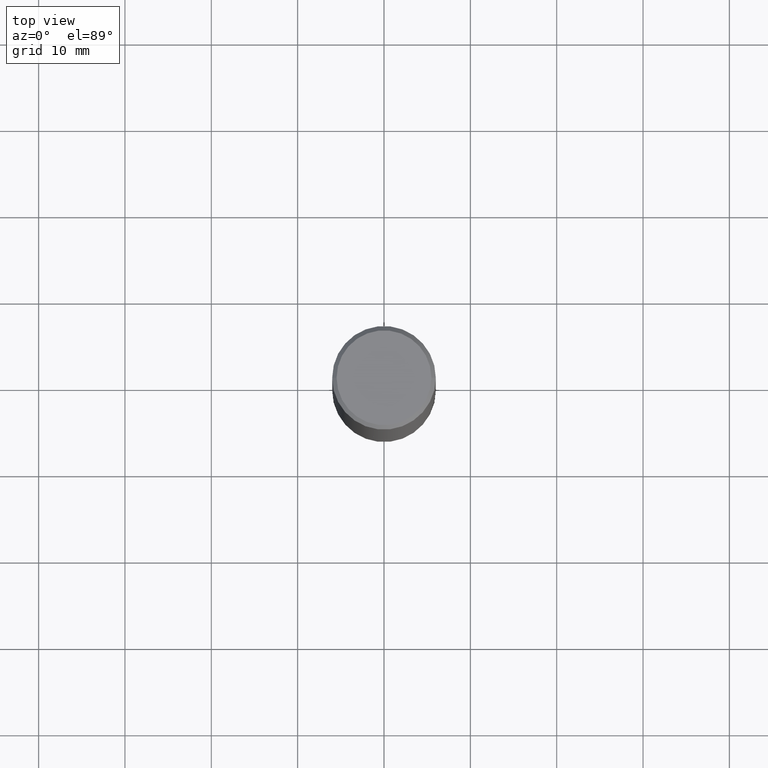
[diagram: clean part render]
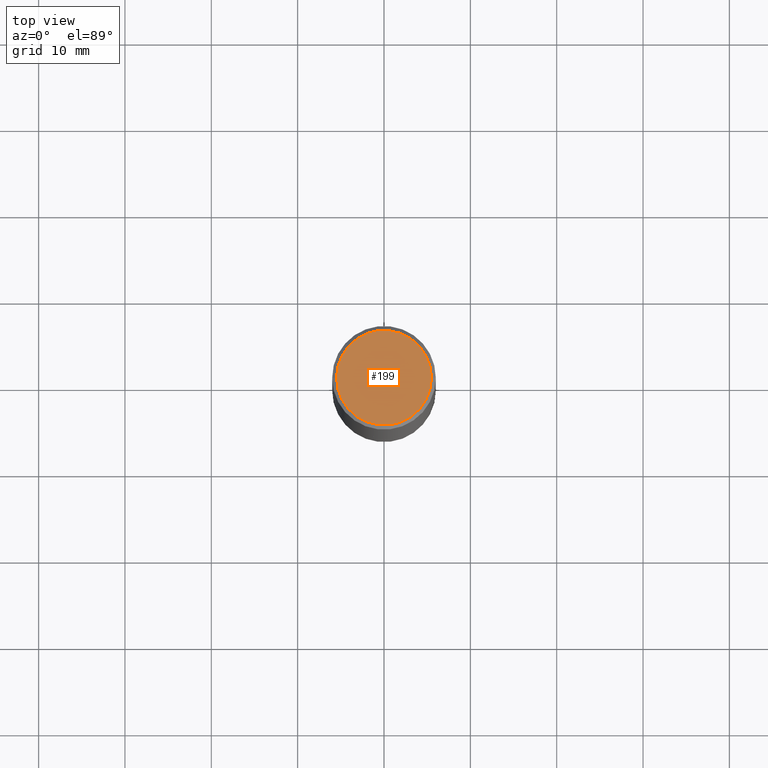
[diagram: same view with one face highlighted and labeled with its STEP entity id]
A machine part, top view. The second image highlights one B-rep face of the part: STEP entity #199.
In plain terms, the highlighted planar face has unit normal (0, -0, -1).
Its self-contained STEP definition (entity closure, byte-faithful):
#1 = PLANE ( 'NONE',  #151 ) ;
#43 = DIRECTION ( 'NONE',  ( -2.445468806185136597E-29, 3.491481338843145583E-15, 1.000000000000000000 ) ) ;
#47 = CIRCLE ( 'NONE', #256, 0.2161999999999996980 ) ;
#52 = DIRECTION ( 'NONE',  ( -1.000000000000000000, 6.982962677686265922E-15, -4.876176775795935793E-29 ) ) ;
#73 = DIRECTION ( 'NONE',  ( 1.000000000000000000, -6.982962677686266711E-15, 4.876217060660162401E-29 ) ) ;
#79 = CARTESIAN_POINT ( 'NONE',  ( 0.2161999999999996980, -1.586759460484350016E-15, 4.268512490111238857E-18 ) ) ;
#84 = CARTESIAN_POINT ( 'NONE',  ( -1.043851414335219820E-46, 1.490343170380447200E-32, 4.268512490100411279E-18 ) ) ;
#112 = DIRECTION ( 'NONE',  ( 2.438088387897960049E-29, -3.491481338843145188E-15, -1.000000000000000000 ) ) ;
#120 = EDGE_CURVE ( 'NONE', #224, #319, #47, .T. ) ;
#140 = ORIENTED_EDGE ( 'NONE', *, *, #120, .T. ) ;
#151 = AXIS2_PLACEMENT_3D ( 'NONE', #310, #112, #52 ) ;
#193 = FACE_OUTER_BOUND ( 'NONE', #252, .T. ) ;
#199 = ADVANCED_FACE ( 'NONE', ( #193 ), #1, .F. ) ;
#224 = VERTEX_POINT ( 'NONE', #314 ) ;
#250 = CIRCLE ( 'NONE', #284, 0.2161999999999996980 ) ;
#252 = EDGE_LOOP ( 'NONE', ( #140, #286 ) ) ;
#256 = AXIS2_PLACEMENT_3D ( 'NONE', #280, #43, #73 ) ;
#273 = DIRECTION ( 'NONE',  ( 1.000000000000000000, -6.982962677686266711E-15, 4.876217060660162401E-29 ) ) ;
#280 = CARTESIAN_POINT ( 'NONE',  ( -1.043851414335219820E-46, 1.490343170380447200E-32, 4.268512490100411279E-18 ) ) ;
#284 = AXIS2_PLACEMENT_3D ( 'NONE', #84, #301, #273 ) ;
#286 = ORIENTED_EDGE ( 'NONE', *, *, #357, .T. ) ;
#301 = DIRECTION ( 'NONE',  ( -2.445468806185136597E-29, 3.491481338843145583E-15, 1.000000000000000000 ) ) ;
#310 = CARTESIAN_POINT ( 'NONE',  ( 1.509716530915768548E-15, 0.2161999999999996980, -7.527240092128368218E-16 ) ) ;
#314 = CARTESIAN_POINT ( 'NONE',  ( -0.2161999999999996980, 1.544631344304200000E-15, 4.268512490089730842E-18 ) ) ;
#319 = VERTEX_POINT ( 'NONE', #79 ) ;
#357 = EDGE_CURVE ( 'NONE', #319, #224, #250, .T. ) ;